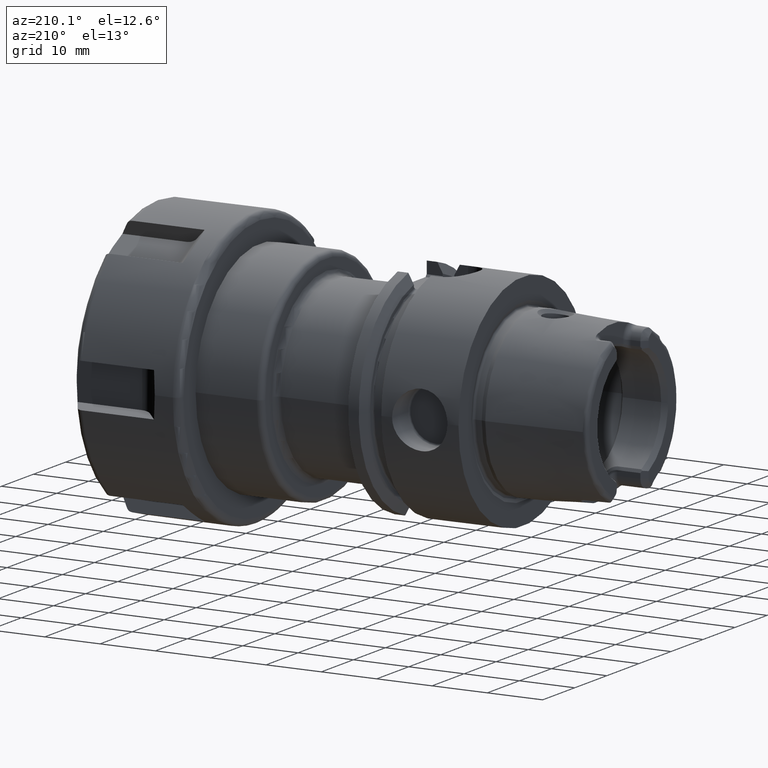
[diagram: clean part render]
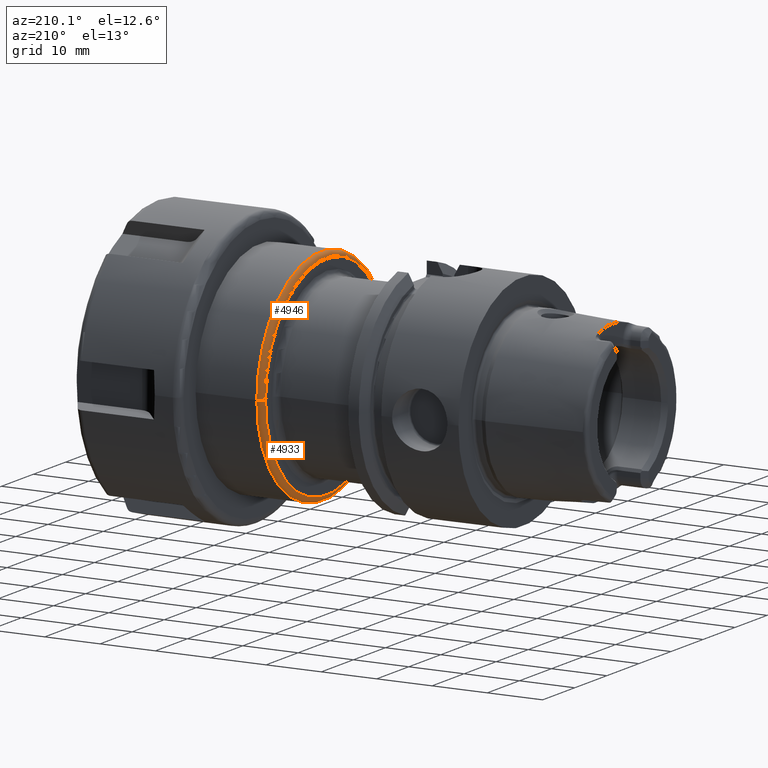
[diagram: same view with one multi-face feature highlighted, each face labeled with its STEP entity id]
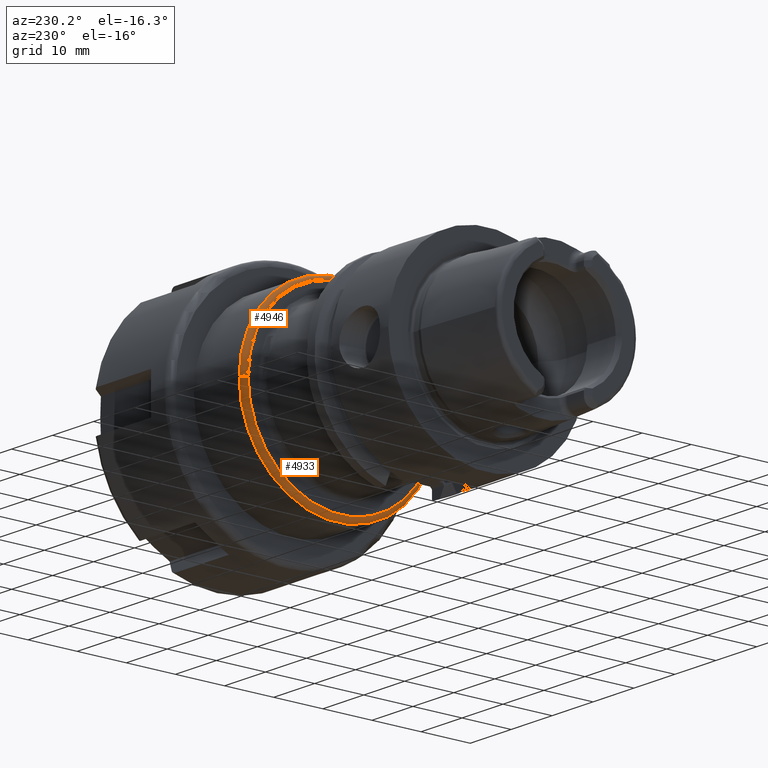
[diagram: same view with one multi-face feature highlighted, each face labeled with its STEP entity id]
A machine part, auxiliary view. The highlighted faces form ONE feature: a constant-radius fillet chain: 2 tangent blend faces with common blend radius 1 mm. The faces share edges in the B-rep.
A second angle (auxiliary view) of the same feature is appended — it is thin or edge-on in the first view.
Their STEP definitions:
[1] entity #4933 (Torus):
#1552=CARTESIAN_POINT('',(3.545E1,0.E0,0.E0));
#1553=DIRECTION('',(-1.E0,0.E0,0.E0));
#1554=DIRECTION('',(0.E0,1.E0,0.E0));
#1555=AXIS2_PLACEMENT_3D('',#1552,#1553,#1554);
#1562=CARTESIAN_POINT('',(3.645E1,1.9E1,0.E0));
#1563=DIRECTION('',(0.E0,0.E0,-1.E0));
#1564=DIRECTION('',(-1.E0,0.E0,0.E0));
#1565=AXIS2_PLACEMENT_3D('',#1562,#1563,#1564);
#1567=CARTESIAN_POINT('',(3.645E1,-1.9E1,0.E0));
#1568=DIRECTION('',(0.E0,0.E0,1.E0));
#1569=DIRECTION('',(-1.E0,0.E0,0.E0));
#1570=AXIS2_PLACEMENT_3D('',#1567,#1568,#1569);
#1582=CARTESIAN_POINT('',(3.645E1,0.E0,0.E0));
#1583=DIRECTION('',(-1.E0,0.E0,0.E0));
#1584=DIRECTION('',(0.E0,1.E0,0.E0));
#1585=AXIS2_PLACEMENT_3D('',#1582,#1583,#1584);
#3280=CARTESIAN_POINT('',(3.545E1,1.9E1,0.E0));
#3281=CARTESIAN_POINT('',(3.545E1,-1.9E1,0.E0));
#3282=VERTEX_POINT('',#3280);
#3283=VERTEX_POINT('',#3281);
#3284=CARTESIAN_POINT('',(3.645E1,2.E1,0.E0));
#3285=CARTESIAN_POINT('',(3.645E1,-2.E1,0.E0));
#3286=VERTEX_POINT('',#3284);
#3287=VERTEX_POINT('',#3285);
#4919=CARTESIAN_POINT('',(3.645E1,0.E0,0.E0));
#4920=DIRECTION('',(1.E0,0.E0,0.E0));
#4921=DIRECTION('',(0.E0,9.999850893226E-1,5.460872858067E-3));
#4922=AXIS2_PLACEMENT_3D('',#4919,#4920,#4921);
#4923=TOROIDAL_SURFACE('',#4922,1.9E1,1.E0);
#4924=ORIENTED_EDGE('',*,*,#4908,.T.);
#4926=ORIENTED_EDGE('',*,*,#4925,.T.);
#4928=ORIENTED_EDGE('',*,*,#4927,.F.);
#4930=ORIENTED_EDGE('',*,*,#4929,.F.);
#4931=EDGE_LOOP('',(#4924,#4926,#4928,#4930));
#4932=FACE_OUTER_BOUND('',#4931,.F.);
#4933=ADVANCED_FACE('',(#4932),#4923,.T.);
#1556=CIRCLE('',#1555,1.9E1);
#1566=CIRCLE('',#1565,1.E0);
#1571=CIRCLE('',#1570,1.E0);
#1586=CIRCLE('',#1585,2.E1);
#4908=EDGE_CURVE('',#3282,#3283,#1556,.T.);
#4925=EDGE_CURVE('',#3283,#3287,#1571,.T.);
#4927=EDGE_CURVE('',#3286,#3287,#1586,.T.);
#4929=EDGE_CURVE('',#3282,#3286,#1566,.T.);
[2] entity #4946 (Torus):
#1557=CARTESIAN_POINT('',(3.545E1,0.E0,0.E0));
#1558=DIRECTION('',(-1.E0,0.E0,0.E0));
#1559=DIRECTION('',(0.E0,-1.E0,0.E0));
#1560=AXIS2_PLACEMENT_3D('',#1557,#1558,#1559);
#1562=CARTESIAN_POINT('',(3.645E1,1.9E1,0.E0));
#1563=DIRECTION('',(0.E0,0.E0,-1.E0));
#1564=DIRECTION('',(-1.E0,0.E0,0.E0));
#1565=AXIS2_PLACEMENT_3D('',#1562,#1563,#1564);
#1567=CARTESIAN_POINT('',(3.645E1,-1.9E1,0.E0));
#1568=DIRECTION('',(0.E0,0.E0,1.E0));
#1569=DIRECTION('',(-1.E0,0.E0,0.E0));
#1570=AXIS2_PLACEMENT_3D('',#1567,#1568,#1569);
#1572=CARTESIAN_POINT('',(3.645E1,0.E0,0.E0));
#1573=DIRECTION('',(-1.E0,0.E0,0.E0));
#1574=DIRECTION('',(0.E0,-1.E0,0.E0));
#1575=AXIS2_PLACEMENT_3D('',#1572,#1573,#1574);
#3280=CARTESIAN_POINT('',(3.545E1,1.9E1,0.E0));
#3281=CARTESIAN_POINT('',(3.545E1,-1.9E1,0.E0));
#3282=VERTEX_POINT('',#3280);
#3283=VERTEX_POINT('',#3281);
#3284=CARTESIAN_POINT('',(3.645E1,2.E1,0.E0));
#3285=CARTESIAN_POINT('',(3.645E1,-2.E1,0.E0));
#3286=VERTEX_POINT('',#3284);
#3287=VERTEX_POINT('',#3285);
#4934=CARTESIAN_POINT('',(3.645E1,0.E0,0.E0));
#4935=DIRECTION('',(1.E0,0.E0,0.E0));
#4936=DIRECTION('',(0.E0,-9.999850893226E-1,-5.460872858067E-3));
#4937=AXIS2_PLACEMENT_3D('',#4934,#4935,#4936);
#4938=TOROIDAL_SURFACE('',#4937,1.9E1,1.E0);
#4939=ORIENTED_EDGE('',*,*,#4910,.T.);
#4940=ORIENTED_EDGE('',*,*,#4929,.T.);
#4942=ORIENTED_EDGE('',*,*,#4941,.F.);
#4943=ORIENTED_EDGE('',*,*,#4925,.F.);
#4944=EDGE_LOOP('',(#4939,#4940,#4942,#4943));
#4945=FACE_OUTER_BOUND('',#4944,.F.);
#4946=ADVANCED_FACE('',(#4945),#4938,.T.);
#1561=CIRCLE('',#1560,1.9E1);
#1566=CIRCLE('',#1565,1.E0);
#1571=CIRCLE('',#1570,1.E0);
#1576=CIRCLE('',#1575,2.E1);
#4910=EDGE_CURVE('',#3283,#3282,#1561,.T.);
#4925=EDGE_CURVE('',#3283,#3287,#1571,.T.);
#4929=EDGE_CURVE('',#3282,#3286,#1566,.T.);
#4941=EDGE_CURVE('',#3287,#3286,#1576,.T.);